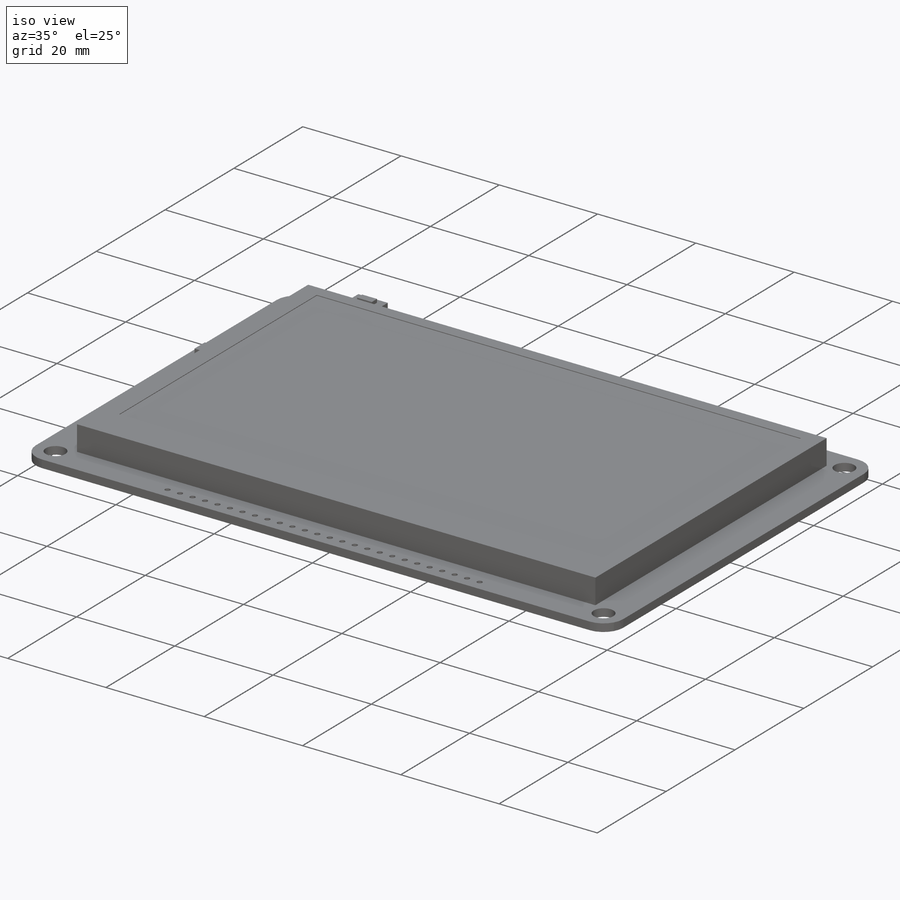
[diagram: iso view]
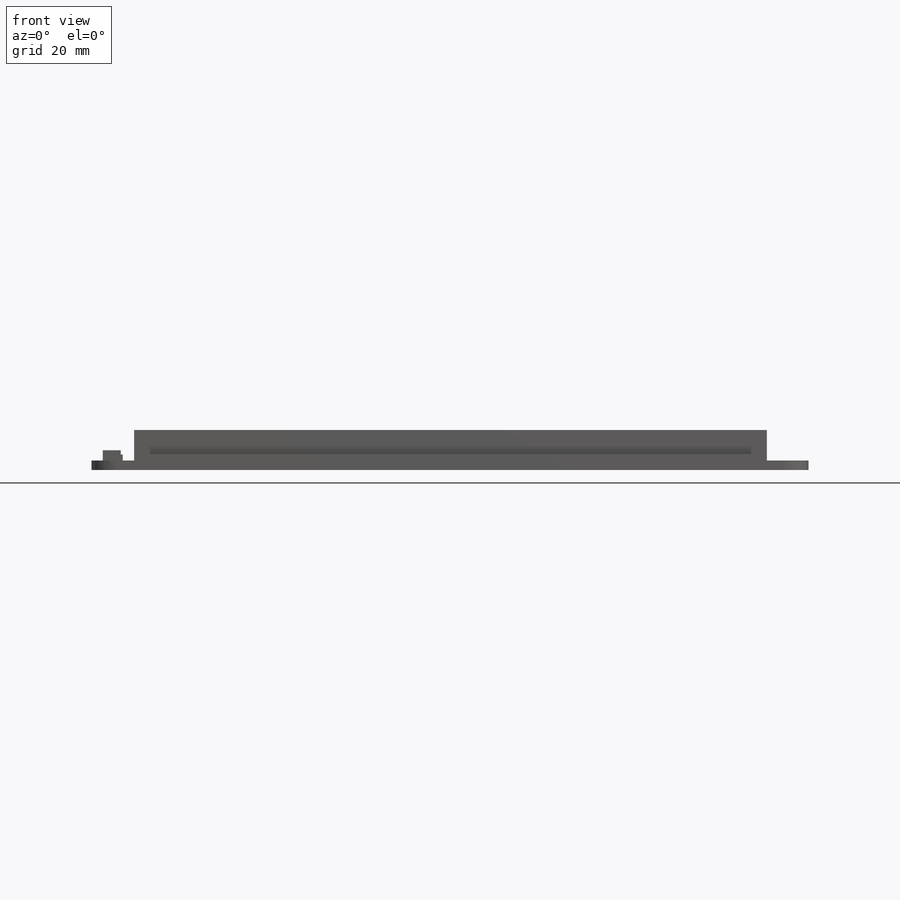
[diagram: front view]
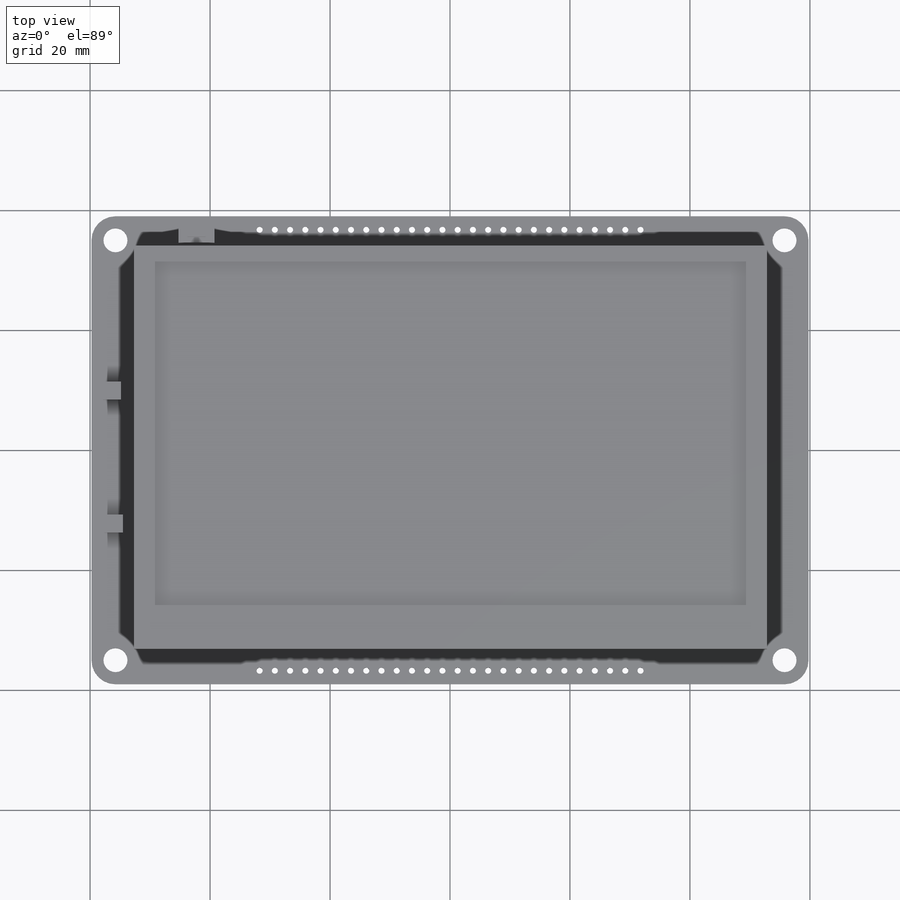
[diagram: top view]
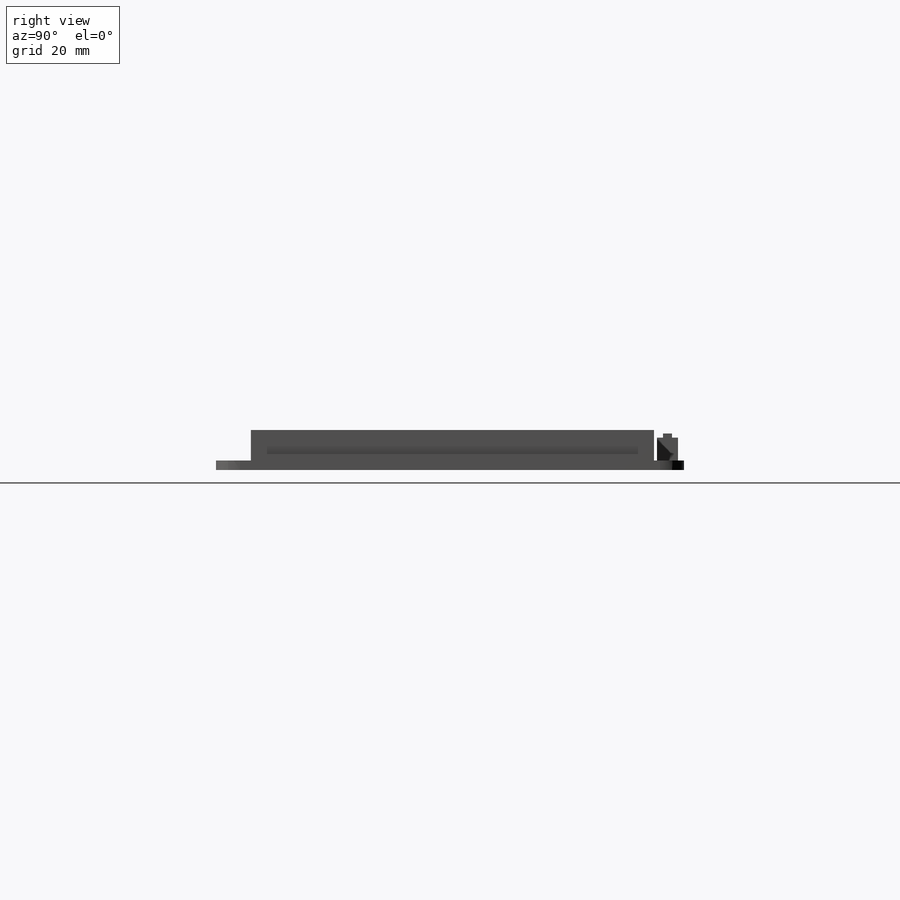
[diagram: right view]
SOLIDWORKS PART (.sldprt)
format: sldprt  version: not decoded by parser v0  size: 700,416 bytes
history: native  units: mm
features: sketch x11, extrude x6, cut_extrude x4, material x1, pattern_linear x1 + 2 further entries (+15 scaffold rows collapsed)
feature tree (40):
  scaffold x15  (default folders/planes/origin — collapsed)
  material  "Material <not specified>"
  "Axis Y"
  "Axis Z"
  sketch  "Sketch1"  dims[D1=119.5324mm D2=78.0034mm]
  extrude  "Boss-Extrude1"  Depth=1.5875mm
  sketch  "Sketch2"  dims[c1.D1=~7.640128mm c1.D2=~7.640128mm c1.D3=4.0mm c2.D1=111.5314mm c2.D2=70.0024mm]
  cut_extrude  "Cut-Extrude1"  [1 undecoded]
  sketch  "Sketch3"  dims[c1.D1=1.016mm c1.D2=4.0mm c1.D3=2.54mm c2.D2=24.0284mm c2.D3=72.5mm]
  cut_extrude  "Cut-Extrude2"  [1 undecoded]
  sketch  "Sketch11"
  cut_extrude  "Cut-Extrude4"  [1 undecoded]
  pattern_linear  "LPattern1"  Count1=26 Count2=1 Spacing1=2.54mm Spacing2=2.54mm
  sketch  "Sketch4"
  sketch  "Sketch5"  dims[D1=105.5mm D2=67.2mm D3=7.1mm D4=5.0mm]
  extrude  "Boss-Extrude2"  Depth=5.08mm
  sketch  "Sketch6"  dims[c1.D1=109.22mm c1.D2=3.5mm c1.D3=2.5mm c1.D4=98.5mm c2.D1=57.4mm]
  cut_extrude  "Cut-Extrude3"  Depth=0.127mm
  sketch  "Sketch7"  dims[D1=3.5mm D2=6.0mm D3=14.5mm D4=1.0mm]
  extrude  "Boss-Extrude3"  Depth=3.8mm
  sketch  "Sketch8"  dims[D1=3.0mm D2=1.5mm]
  extrude  "Boss-Extrude4"  Depth=4.5mm
  sketch  "Sketch9"  dims[D1=3.0mm D2=3.0mm D3=1.88mm D4=27.6mm]
  extrude  "Boss-Extrude5"  Depth=1.71mm
  sketch  "Sketch10"  dims[D1=3.0mm D2=3.0mm D3=2.22mm D4=25.26mm]
  extrude  "Boss-Extrude6"  Depth=1mm
decode coverage: 17 of 22 modeling features carry decoded parameters; 2 rows unclassified (native names shown)
note: ~ marks probable driven/reference dimensions
note: 3 parameter values undecoded
summary: no parameter record found for 3 features
note: suppression state not decoded; provenance and decode notes live in map.json
